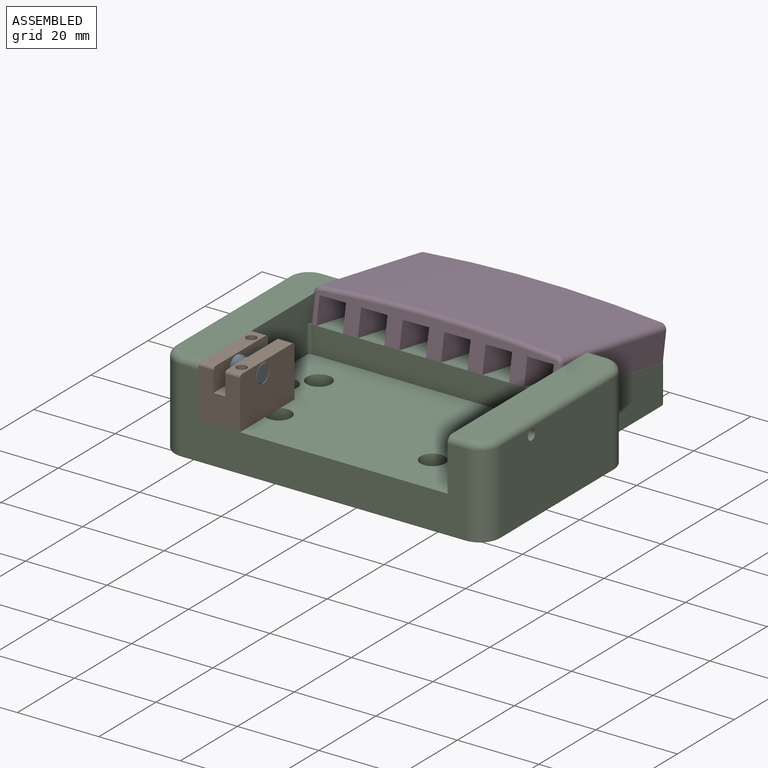
[diagram: assembled view]
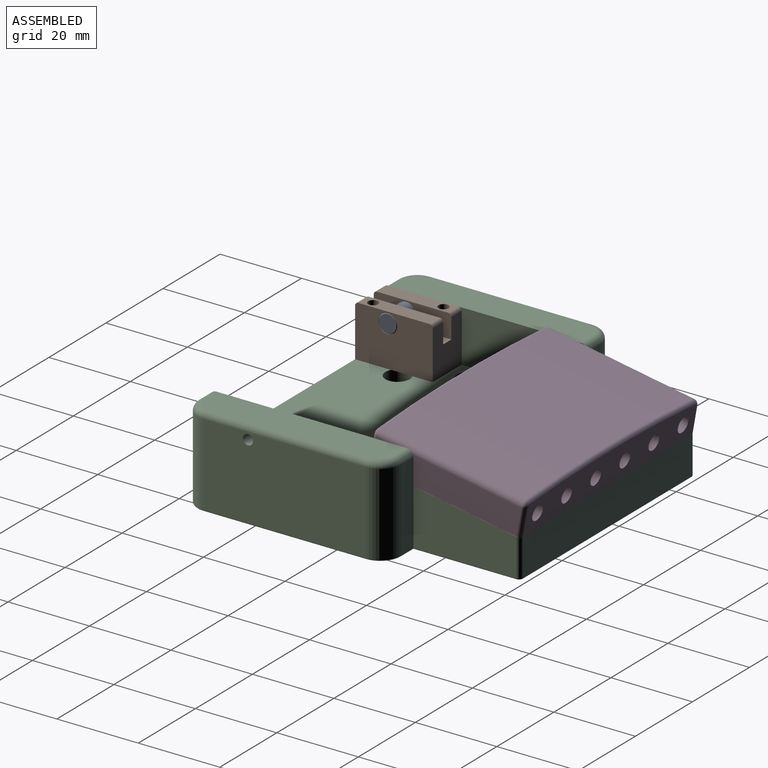
[diagram: assembled view, second angle]
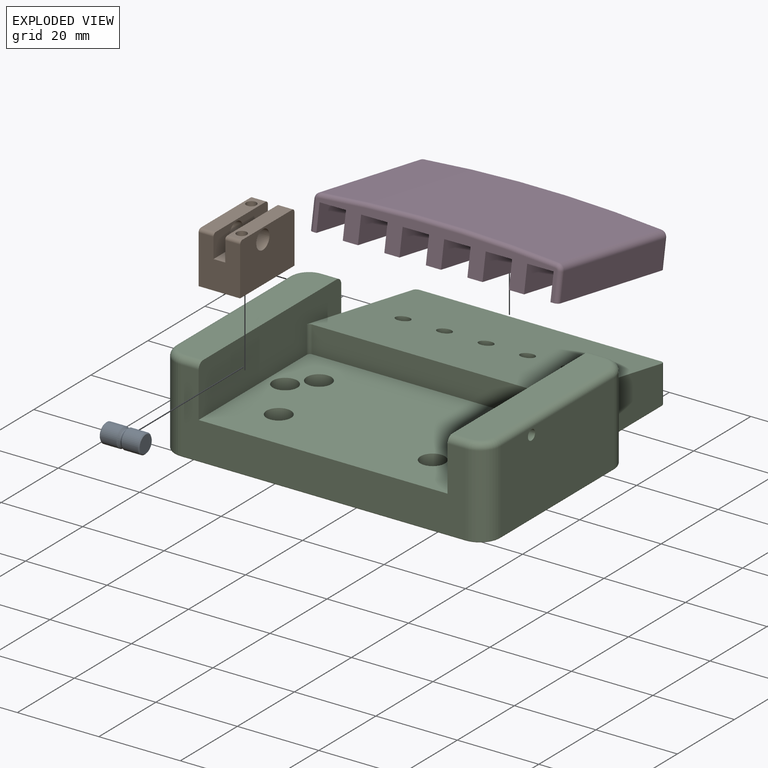
[diagram: exploded view]
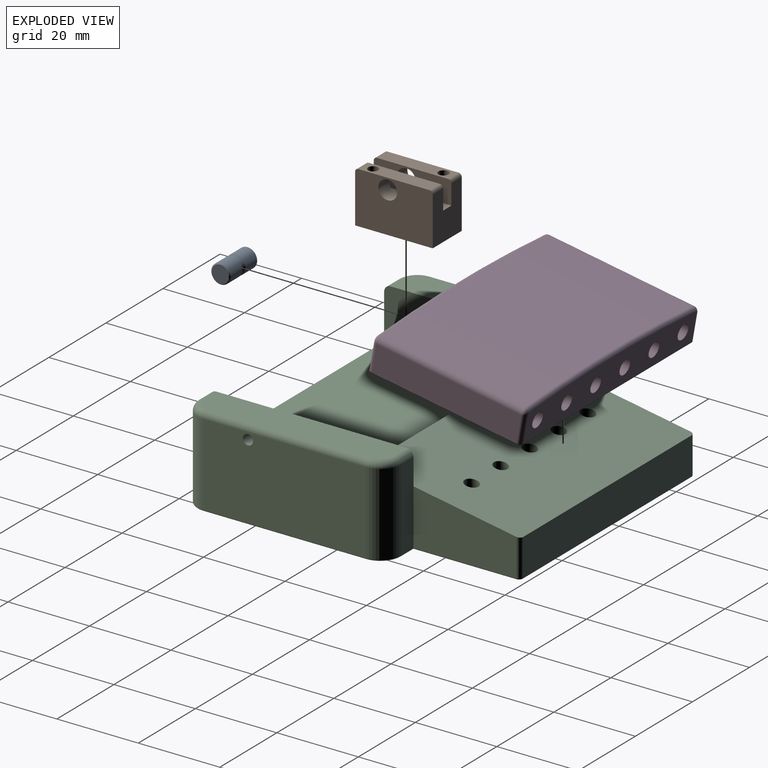
[diagram: exploded view, second angle]
ASSEMBLY  parts=4 mates=3
PART A: 9 faces, bbox 9.8x4.8x4.8 mm
  f0: plane 4.25x4.25mm, normal (-1,0,0), area 14.2mm2, adj f7
  f1: plane 4.25x4.25mm, normal (1,0,0), area 14.2mm2, adj f8
  f2: cylinder r=2.38mm len=4.76mm, axis (-1,0,0), area 60.2mm2, adj f3,f8
  f3: cone r=1.77mm half-angle=45deg, axis (1,0,0), area 8.3mm2, adj f2,f6
  f4: cone r=1.77mm half-angle=45deg, axis (-1,0,0), area 8.3mm2, adj f5,f6
  f5: cylinder r=2.38mm len=4.76mm, axis (-1,0,0), area 60.2mm2, adj f4,f7
  f6: torus R=2.13mm, axis (-1,0,0), area 4.8mm2, adj f3,f4
  f7: cone r=2.13mm half-angle=45deg, axis (1,0,0), area 5.1mm2, adj f0,f5
  f8: cone r=2.38mm half-angle=45deg, axis (-1,0,0), area 5.1mm2, adj f1,f2
PART B: 18 faces, bbox 10.2x19.1x12.7 mm
  f0: plane 17.48x3.66mm, normal (0,0,1), area 59mm2, adj f4,f8,f10,f11,f15
  f1: plane 11.91x10.19mm, normal (0,1,0), area 107.2mm2, adj f2,f4,f6,f7,f8,f9,f10,f13
  f2: plane 19.05x12.7mm, normal (-1,0,0), area 224.9mm2, adj f1,f3,f5,f6,f12,f13,f17
  f3: plane 11.91x10.19mm, normal (0,-1,0), area 107.2mm2, adj f2,f4,f6,f7,f8,f9,f11,f12
  f4: plane 19.05x12.7mm, normal (1,0,0), area 224.9mm2, adj f0,f1,f3,f6,f10,f11,f16
  f5: plane 17.48x3.66mm, normal (0,0,1), area 59mm2, adj f2,f7,f12,f13,f14
  f6: plane 19.05x10.19mm, normal (0,0,-1), area 184.2mm2, adj f1,f2,f3,f4,f14,f15
  f7: plane 19.05x5.72mm, normal (1,0,0), area 91.8mm2, adj f1,f3,f5,f9,f12,f13,f17
  f8: plane 19.05x5.72mm, normal (-1,0,0), area 91.8mm2, adj f0,f1,f3,f9,f10,f11,f16
  f9: plane 19.05x2.87mm, normal (0,0,1), area 54.7mm2, adj f1,f3,f7,f8
  f10: cylinder r=0.79mm len=3.66mm, axis (1,0,0), area 4.5mm2, adj f0,f1,f4,f8
  f11: cylinder r=0.79mm len=3.66mm, axis (-1,0,0), area 4.5mm2, adj f0,f3,f4,f8
  f12: cylinder r=0.79mm len=3.66mm, axis (-1,0,0), area 4.5mm2, adj f2,f3,f5,f7
  f13: cylinder r=0.79mm len=3.66mm, axis (1,0,0), area 4.5mm2, adj f1,f2,f5,f7
  f14: cylinder r=1.25mm len=12.7mm, axis (0,0,1), area 99.7mm2, adj f5,f6
  f15: cylinder r=1.25mm len=12.7mm, axis (0,0,1), area 99.7mm2, adj f0,f6
  f16: cylinder r=2.31mm len=4.62mm, axis (1,0,0), area 53.1mm2, adj f4,f8
  f17: cylinder r=2.31mm len=4.62mm, axis (1,0,0), area 53.1mm2, adj f2,f7
PART C: 83 faces, bbox 81x76.8x22.1 mm
  f0: plane 79.49x75.69mm, normal (0,0,-1), area 5265.9mm2, adj f35,f38,f41,f44,f47,f48,f49,f50
  f1: plane 50x12.7mm, normal (1,0,0), area 565.3mm2, adj f3,f5,f8,f9,f14,f26,f30,f32
  f2: plane 50x12.7mm, normal (-1,0,0), area 560.4mm2, adj f3,f5,f10,f11,f14,f21,f25,f31
  f3: plane 61.11x38.69mm, normal (0,0,1), area 2193.4mm2, adj f1,f2,f5,f15,f31,f32,f67,f70
  f4: plane 59.11x9.07mm, normal (0,1,0), area 536mm2, adj f14,f56,f60,f62
  f5: plane 69.84x20.18mm, normal (0,-1,0), area 730.3mm2, adj f1,f2,f3,f19,f20,f21,f26,f51
  f6: plane 39.84x20.18mm, normal (1,0,0), area 799.1mm2, adj f17,f19,f23,f55,f64
  f7: plane 39.84x20.18mm, normal (-1,0,0), area 804mm2, adj f18,f20,f28,f48
  f8: plane 20.18x4.36mm, normal (0,1,0), area 88.1mm2, adj f1,f13,f16,f18,f30,f52
  f9: plane 46.83x7.86mm, normal (0,0,1), area 362.6mm2, adj f1,f26,f27,f28,f29,f30
  f10: plane 20.18x4.36mm, normal (0,1,0), area 88.1mm2, adj f2,f12,f17,f25,f59
  f11: plane 46.83x7.86mm, normal (0,0,1), area 362.6mm2, adj f2,f21,f22,f23,f24,f25
  f12: plane 25.2x13.69mm, normal (1,0,0), area 288.9mm2, adj f10,f14,f58,f62
  f13: plane 25.2x9.07mm, normal (-1,0,0), area 228.5mm2, adj f8,f16,f54,f60
  f14: plane 61.24x38.4mm, normal (0,0.17,0.98), area 2281.4mm2, adj f1,f2,f4,f12,f15,f16,f31,f32
  f15: plane 59.59x6.61mm, normal (0,-1,0), area 394.1mm2, adj f3,f14,f31,f32
  f16: plane 25.22x4.62mm, normal (-1,0,0), area 60.4mm2, adj f8,f13,f14,f60
  f17: cylinder r=5.08mm len=20.18mm, axis (0,0,-1), area 161mm2, adj f6,f10,f24,f57
  f18: cylinder r=5.08mm len=20.18mm, axis (0,0,-1), area 161mm2, adj f7,f8,f29,f50
  f19: cylinder r=5.08mm len=20.18mm, axis (0,0,1), area 161mm2, adj f5,f6,f22,f53
  f20: cylinder r=5.08mm len=20.18mm, axis (0,0,-1), area 161mm2, adj f5,f7,f27,f49
  f21: cylinder r=1.59mm len=4.36mm, axis (-1,0,0), area 10.9mm2, adj f2,f5,f11,f22
  f22: torus R=3.49mm, axis (0,0,1), area 17.6mm2, adj f11,f19,f21,f23
  f23: cylinder r=1.59mm len=39.84mm, axis (0,-1,0), area 99.3mm2, adj f6,f11,f22,f24
  f24: torus R=3.49mm, axis (0,0,1), area 17.6mm2, adj f11,f17,f23,f25
  f25: cylinder r=1.59mm len=4.36mm, axis (1,0,0), area 10.9mm2, adj f2,f10,f11,f24
  f26: cylinder r=1.59mm len=4.36mm, axis (-1,0,0), area 10.9mm2, adj f1,f5,f9,f27
  f27: torus R=3.49mm, axis (0,0,1), area 17.6mm2, adj f9,f20,f26,f28
  f28: cylinder r=1.59mm len=39.84mm, axis (0,1,0), area 99.3mm2, adj f7,f9,f27,f29
  f29: torus R=3.49mm, axis (0,0,1), area 17.6mm2, adj f9,f18,f28,f30
  f30: cylinder r=1.59mm len=4.36mm, axis (1,0,0), area 10.9mm2, adj f1,f8,f9,f29
  f31: cylinder r=0.76mm len=6.75mm, axis (0,0,1), area 8mm2, adj f2,f3,f14,f15
  f32: cylinder r=0.76mm len=6.75mm, axis (0,0,-1), area 8mm2, adj f1,f3,f14,f15
  f33: cylinder r=1.7mm len=9.17mm, axis (0,0,-1), area 95mm2, adj f14,f34
  f34: plane 6.5x6.5mm, normal (0,0,-1), area 24.1mm2, adj f33,f35
  f35: cylinder r=3.25mm len=6.5mm, axis (0,0,-1), area 77.8mm2, adj f0,f34
  f36: cylinder r=1.7mm len=9.17mm, axis (0,0,-1), area 95mm2, adj f14,f37
  f37: plane 6.5x6.5mm, normal (0,0,-1), area 24.1mm2, adj f36,f38
  f38: cylinder r=3.25mm len=6.5mm, axis (0,0,-1), area 77.8mm2, adj f0,f37
  f39: cylinder r=1.7mm len=9.17mm, axis (0,0,-1), area 95mm2, adj f14,f40
  f40: plane 6.5x6.5mm, normal (0,0,-1), area 24.1mm2, adj f39,f41
  f41: cylinder r=3.25mm len=6.5mm, axis (0,0,-1), area 77.8mm2, adj f0,f40
  f42: cylinder r=1.7mm len=9.17mm, axis (0,0,-1), area 95mm2, adj f14,f43
  f43: plane 6.5x6.5mm, normal (0,0,-1), area 24.1mm2, adj f42,f44
  f44: cylinder r=3.25mm len=6.5mm, axis (0,0,-1), area 77.8mm2, adj f0,f43
  f45: cylinder r=1.7mm len=9.17mm, axis (0,0,-1), area 95mm2, adj f14,f46
  f46: plane 6.5x6.5mm, normal (0,0,-1), area 24.1mm2, adj f45,f47
  f47: cylinder r=3.25mm len=6.5mm, axis (0,0,-1), area 77.8mm2, adj f0,f46
  f48: cylinder r=0.25mm len=39.84mm, axis (0,-1,0), area 15.9mm2, adj f0,f7,f49,f50
  f49: torus R=4.83mm, axis (0,0,1), area 3.1mm2, adj f0,f20,f48,f51
  f50: torus R=4.83mm, axis (0,0,1), area 3.1mm2, adj f0,f18,f48,f52
  f51: cylinder r=0.25mm len=69.84mm, axis (1,0,0), area 27.9mm2, adj f0,f5,f49,f53
  f52: cylinder r=0.25mm len=4.62mm, axis (-1,0,0), area 1.8mm2, adj f0,f8,f50,f54
  f53: torus R=4.83mm, axis (0,0,1), area 3.1mm2, adj f0,f19,f51,f55
  f54: cylinder r=0.25mm len=25.45mm, axis (0,1,0), area 10.1mm2, adj f0,f13,f52,f61
  f55: cylinder r=0.25mm len=39.84mm, axis (0,1,0), area 15.9mm2, adj f0,f6,f53,f57
  f56: cylinder r=0.25mm len=59.11mm, axis (-1,0,0), area 23.6mm2, adj f0,f4,f61,f63
  f57: torus R=4.83mm, axis (0,0,1), area 3.1mm2, adj f0,f17,f55,f59
  f58: cylinder r=0.25mm len=25.45mm, axis (0,-1,0), area 10.1mm2, adj f0,f12,f59,f63
  f59: cylinder r=0.25mm len=4.62mm, axis (-1,0,0), area 1.8mm2, adj f0,f10,f57,f58
  f60: cylinder r=1mm len=9.24mm, axis (0,0,1), area 14.4mm2, adj f4,f13,f14,f16,f61
  f61: torus R=0.75mm, axis (0,0,1), area 0.6mm2, adj f0,f54,f56,f60
  f62: cylinder r=1mm len=9.24mm, axis (0,0,-1), area 14.4mm2, adj f4,f12,f14,f63
  f63: torus R=0.75mm, axis (0,0,1), area 0.6mm2, adj f0,f56,f58,f62
  f64: cylinder r=1.25mm len=9.44mm, axis (1,0,0), area 74.2mm2, adj f2,f6
  f65: cylinder r=1.93mm len=5.72mm, axis (0,0,1), area 69.2mm2, adj f0,f66
  f66: plane 6.02x6.02mm, normal (0,0,1), area 16.8mm2, adj f65,f67
  f67: cylinder r=3.01mm len=6.02mm, axis (0,0,1), area 68.1mm2, adj f3,f66
  f68: cylinder r=1.93mm len=5.72mm, axis (0,0,1), area 69.2mm2, adj f0,f69
  f69: plane 6.02x6.02mm, normal (0,0,1), area 16.8mm2, adj f68,f70
  f70: cylinder r=3.01mm len=6.02mm, axis (0,0,1), area 68.1mm2, adj f3,f69
  f71: cylinder r=1.93mm len=5.72mm, axis (0,0,1), area 69.2mm2, adj f0,f72
  f72: plane 6.02x6.02mm, normal (0,0,1), area 16.8mm2, adj f71,f73
  f73: cylinder r=3.01mm len=6.02mm, axis (0,0,1), area 68.1mm2, adj f3,f72
  f74: cylinder r=1.93mm len=5.72mm, axis (0,0,1), area 69.2mm2, adj f0,f75
  f75: plane 6.02x6.02mm, normal (0,0,1), area 16.8mm2, adj f74,f76
  f76: cylinder r=3.01mm len=6.02mm, axis (0,0,1), area 68.1mm2, adj f3,f75
  f77: cylinder r=1.93mm len=5.72mm, axis (0,0,1), area 69.2mm2, adj f0,f78
  f78: plane 6.02x6.02mm, normal (0,0,1), area 16.8mm2, adj f77,f79
  f79: cylinder r=3.01mm len=6.02mm, axis (0,0,1), area 68.1mm2, adj f3,f78
  f80: cylinder r=1.93mm len=5.72mm, axis (0,0,1), area 69.2mm2, adj f0,f81
  f81: plane 6.02x6.02mm, normal (0,0,1), area 16.8mm2, adj f80,f82
  f82: cylinder r=3.01mm len=6.02mm, axis (0,0,1), area 68.1mm2, adj f3,f81
PART D: 58 faces, bbox 61x38.1x11.2 mm
  f0: plane 59.01x8.53mm, normal (0,-1,0), area 226mm2, adj f9,f10,f11,f12,f13,f14,f15,f16
  f1: plane 36.1x6.78mm, normal (-1,0,0), area 244.7mm2, adj f22,f46,f48,f54
  f2: plane 36.1x6.78mm, normal (1,0,0), area 244.7mm2, adj f22,f47,f49,f53
  f3: cylinder r=3.24mm len=6.48mm, axis (0,0,-1), area 55.1mm2, adj f14,f15,f22,f28,f44
  f4: cylinder r=3.24mm len=6.48mm, axis (0,0,-1), area 55.1mm2, adj f13,f21,f22,f23,f43
  f5: cylinder r=3.24mm len=6.48mm, axis (0,0,-1), area 55.1mm2, adj f12,f17,f22,f26,f42
  f6: cylinder r=3.24mm len=6.48mm, axis (0,0,-1), area 55.1mm2, adj f11,f16,f22,f27,f41
  f7: cylinder r=3.24mm len=6.48mm, axis (0,0,-1), area 55.1mm2, adj f10,f19,f22,f24,f40
  f8: cylinder r=3.24mm len=6.48mm, axis (0,0,-1), area 55.1mm2, adj f9,f18,f22,f25,f39
  f9: plane 32.32x6.48mm, normal (1,0,0), area 209.3mm2, adj f0,f8,f22,f25
  f10: plane 32.32x6.48mm, normal (1,0,0), area 209.3mm2, adj f0,f7,f22,f24
  f11: plane 32.32x6.48mm, normal (1,0,0), area 209.3mm2, adj f0,f6,f22,f27
  f12: plane 32.32x6.48mm, normal (1,0,0), area 209.3mm2, adj f0,f5,f22,f26
  f13: plane 32.32x6.48mm, normal (1,0,0), area 209.3mm2, adj f0,f4,f22,f23
  f14: plane 32.32x6.48mm, normal (1,0,0), area 209.3mm2, adj f0,f3,f22,f28
  f15: plane 32.32x6.48mm, normal (-1,0,0), area 209.3mm2, adj f0,f3,f22,f28
  f16: plane 32.32x6.48mm, normal (-1,0,0), area 209.3mm2, adj f0,f6,f22,f27
  f17: plane 32.32x6.48mm, normal (-1,0,0), area 209.3mm2, adj f0,f5,f22,f26
  f18: plane 32.32x6.48mm, normal (-1,0,0), area 209.3mm2, adj f0,f8,f22,f25
  f19: plane 32.32x6.48mm, normal (-1,0,0), area 209.3mm2, adj f0,f7,f22,f24
  f20: plane 59.01x8.53mm, normal (0,1,0), area 415.5mm2, adj f22,f39,f40,f41,f42,f43,f44,f48
  f21: plane 32.32x6.48mm, normal (-1,0,0), area 209.3mm2, adj f0,f4,f22,f23
  f22: plane 61.01x38.1mm, normal (0,0,-1), area 943.8mm2, adj f0,f1,f2,f3,f4,f5,f6,f7
  f23: plane 35.56x6.48mm, normal (0,0,-1), area 225.8mm2, adj f0,f4,f13,f21
  f24: plane 35.56x6.48mm, normal (0,0,-1), area 225.8mm2, adj f0,f7,f10,f19
  f25: plane 35.56x6.48mm, normal (0,0,-1), area 225.8mm2, adj f0,f8,f9,f18
  f26: plane 35.56x6.48mm, normal (0,0,-1), area 225.8mm2, adj f0,f5,f12,f17
  f27: plane 35.56x6.48mm, normal (0,0,-1), area 225.8mm2, adj f0,f6,f11,f16
  f28: plane 35.56x6.48mm, normal (0,0,-1), area 225.8mm2, adj f0,f3,f14,f15
  f29: cylinder r=1.25mm len=7.73mm, axis (0,0.17,-0.98), area 56.4mm2, adj f22,f30
  f30: cone r=0mm half-angle=59deg, axis (0,0.17,-0.98), area 5.7mm2, adj f29
  f31: cylinder r=1.25mm len=7.73mm, axis (0,0.17,-0.98), area 56.4mm2, adj f22,f32
  f32: cone r=0mm half-angle=59deg, axis (0,0.17,-0.98), area 5.7mm2, adj f31
  f33: cylinder r=1.25mm len=7.73mm, axis (0,0.17,-0.98), area 56.4mm2, adj f22,f34
  f34: cone r=0mm half-angle=59deg, axis (0,0.17,-0.98), area 5.7mm2, adj f33
  f35: cylinder r=1.25mm len=7.73mm, axis (0,0.17,-0.98), area 56.4mm2, adj f22,f36
  f36: cone r=0mm half-angle=59deg, axis (0,0.17,-0.98), area 5.7mm2, adj f35
  f37: cylinder r=1.25mm len=7.73mm, axis (0,0.17,-0.98), area 56.4mm2, adj f22,f38
  f38: cone r=0mm half-angle=59deg, axis (0,0.17,-0.98), area 5.7mm2, adj f37
  f39: cylinder r=1.82mm len=3.63mm, axis (0,-1,0), area 32.1mm2, adj f8,f20
  f40: cylinder r=1.82mm len=3.63mm, axis (0,-1,0), area 32.1mm2, adj f7,f20
  f41: cylinder r=1.82mm len=3.63mm, axis (0,-1,0), area 32.1mm2, adj f6,f20
  f42: cylinder r=1.82mm len=3.63mm, axis (0,-1,0), area 32.1mm2, adj f5,f20
  f43: cylinder r=1.82mm len=3.63mm, axis (0,-1,0), area 32.1mm2, adj f4,f20
  f44: cylinder r=1.82mm len=3.63mm, axis (0,-1,0), area 32.1mm2, adj f3,f20
  f45: cylinder r=339.73mm len=58.27mm, axis (0,-1,0), area 2106.1mm2, adj f46,f47,f52,f57
  f46: cylinder r=1.5mm len=36.1mm, axis (0,-1,0), area 80.4mm2, adj f1,f45,f50,f56
  f47: cylinder r=1.5mm len=36.1mm, axis (0,-1,0), area 80.4mm2, adj f2,f45,f51,f55
  f48: cylinder r=1mm len=6.78mm, axis (0,0,1), area 10.6mm2, adj f1,f20,f22,f50
  f49: cylinder r=1mm len=6.78mm, axis (0,0,-1), area 10.6mm2, adj f2,f20,f22,f51
  f50: torus R=0.5mm, axis (0,-1,0), area 2.7mm2, adj f20,f46,f48,f52
  f51: torus R=0.5mm, axis (0,-1,0), area 2.7mm2, adj f20,f47,f49,f52
  f52: torus R=338.73mm, axis (0,-1,0), area 91.5mm2, adj f20,f45,f50,f51
  f53: cylinder r=1mm len=6.78mm, axis (0,0,1), area 10.6mm2, adj f0,f2,f22,f55
  f54: cylinder r=1mm len=6.78mm, axis (0,0,-1), area 10.6mm2, adj f0,f1,f22,f56
  f55: torus R=0.5mm, axis (0,-1,0), area 2.7mm2, adj f0,f47,f53,f57
  f56: torus R=0.5mm, axis (0,-1,0), area 2.7mm2, adj f0,f46,f54,f57
  f57: torus R=338.73mm, axis (0,-1,0), area 91.5mm2, adj f0,f45,f55,f56
PLACE A t=(-15,-26.45,40.65)mm
PLACE B t=(-10.57,-23.79,30.65)mm
PLACE C t=(15.15,3.65,21.33)mm
PLACE D rot(axis=(-1,0,0),10deg) t=(15.15,22.99,33.95)mm
MATE fastened D.f22 <-> C.f14  axis (0,-0.17,-0.98) through (15.15,22.7,34.01)mm
MATE fastened B.f6 <-> C.f3  axis (0,0,-1) through (-15.4,-34.45,30.65)mm
MATE fastened B.f16 <-> A.f2  axis (1,0,0) through (-5.22,-26.45,40.65)mm
